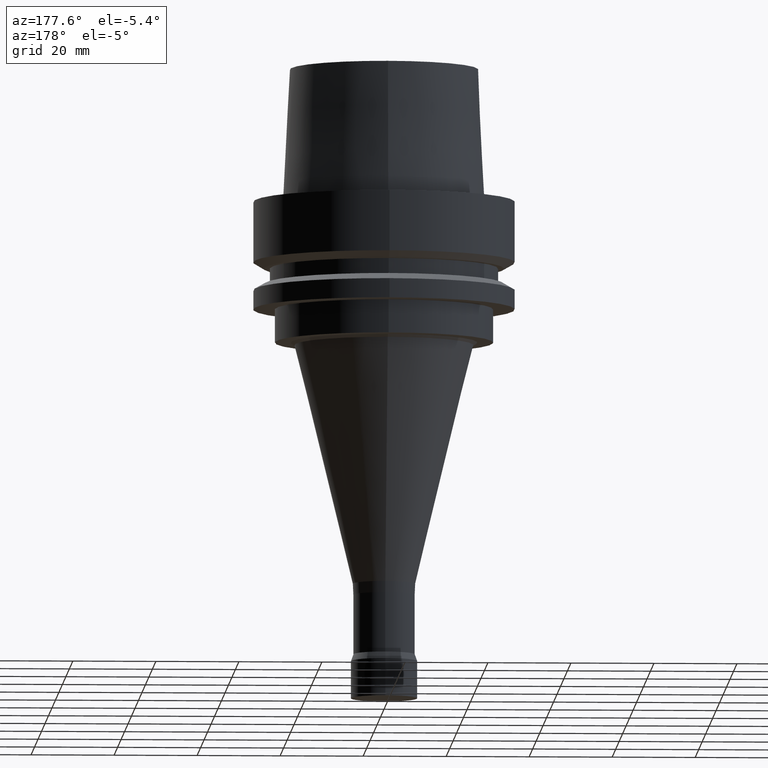
[diagram: clean part render]
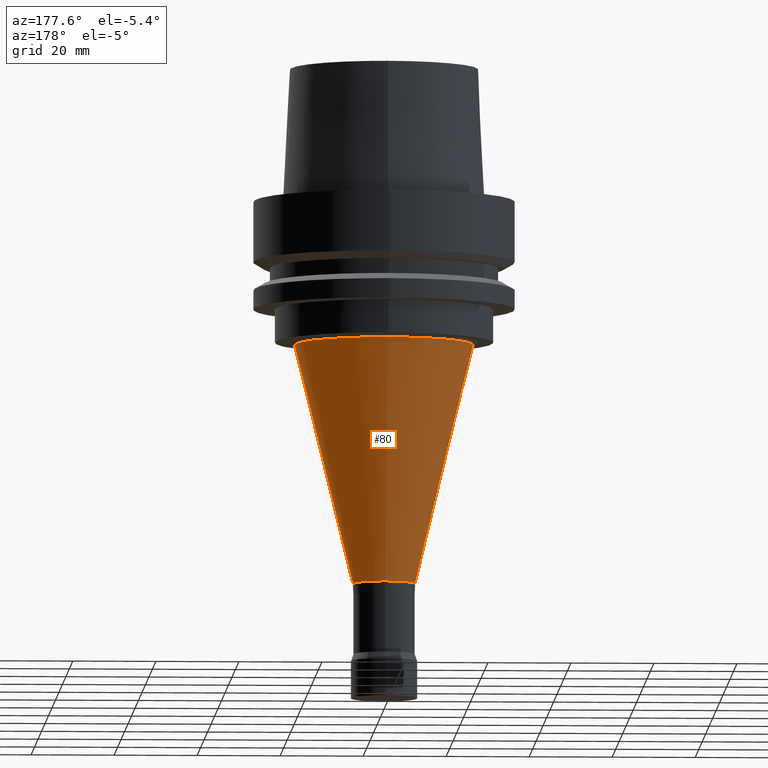
[diagram: same view with one face highlighted and labeled with its STEP entity id]
A machine part, auxiliary view. The second image highlights one B-rep face of the part: STEP entity #80.
In plain terms, the highlighted conical surface has half-angle 13.692 deg.
Its self-contained STEP definition (entity closure, byte-faithful):
#80=ADVANCED_FACE('',(#110,#111),#112,.T.);
#110=FACE_BOUND('',#168,.T.);
#111=FACE_BOUND('',#169,.T.);
#112=CONICAL_SURFACE('',#170,14.547865612185,0.238971947696617);
#168=EDGE_LOOP('',(#236));
#169=EDGE_LOOP('',(#237));
#170=AXIS2_PLACEMENT_3D('',#238,#239,#240);
#236=ORIENTED_EDGE('',*,*,#311,.F.);
#237=ORIENTED_EDGE('',*,*,#315,.T.);
#238=CARTESIAN_POINT('',(3.88596775059169E-015,7.77193550118337E-015,-63.462669453711));
#239=DIRECTION('',(-6.12323399573677E-017,-1.22464679914735E-016,1.0));
#240=DIRECTION('',(-1.23259516440783E-032,1.0,1.22464679914735E-016));
#311=EDGE_CURVE('',#331,#331,#332,.T.);
#315=EDGE_CURVE('',#339,#339,#340,.T.);
#331=VERTEX_POINT('',#369);
#332=CIRCLE('',#370,7.52141960063716);
#339=VERTEX_POINT('',#377);
#340=CIRCLE('',#378,21.5743116237329);
#369=CARTESIAN_POINT('',(5.65196699889224E-015,7.52141960063717,-92.3036258752705));
#370=AXIS2_PLACEMENT_3D('',#408,#409,#410);
#377=CARTESIAN_POINT('',(2.11996850229113E-015,21.5743116237329,-34.6217130321516));
#378=AXIS2_PLACEMENT_3D('',#420,#421,#422);
#408=CARTESIAN_POINT('',(5.65196699889224E-015,1.13039339977845E-014,-92.3036258752705));
#409=DIRECTION('',(6.12323399573677E-017,1.22464679914735E-016,-1.0));
#410=DIRECTION('',(-1.23259516440783E-032,1.0,1.22464679914735E-016));
#420=CARTESIAN_POINT('',(2.11996850229113E-015,4.23993700458226E-015,-34.6217130321516));
#421=DIRECTION('',(6.12323399573677E-017,1.22464679914735E-016,-1.0));
#422=DIRECTION('',(-1.23259516440783E-032,1.0,1.22464679914735E-016));